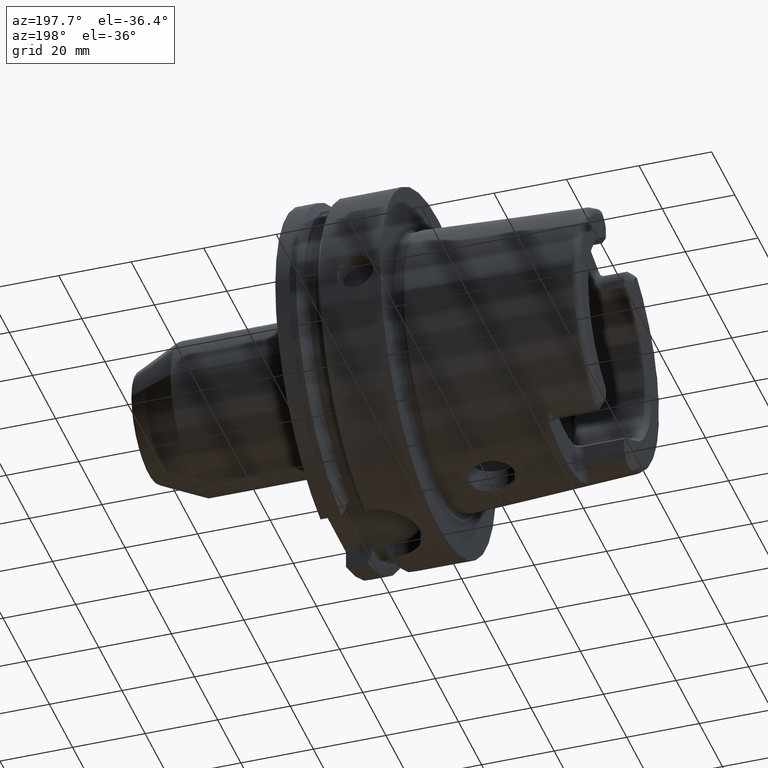
[diagram: clean part render]
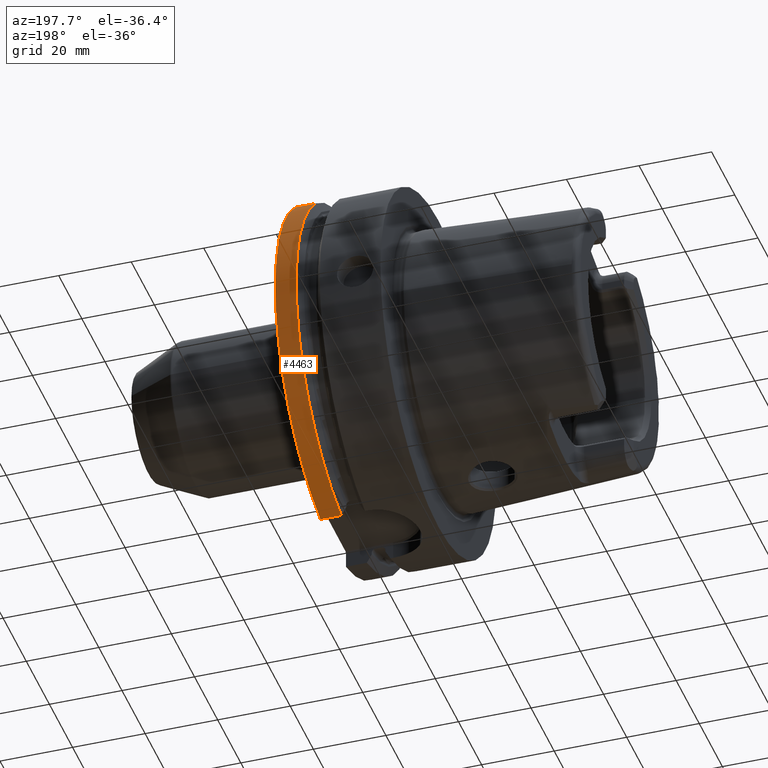
[diagram: same view with one face highlighted and labeled with its STEP entity id]
A machine part, auxiliary view. The second image highlights one B-rep face of the part: STEP entity #4463.
In plain terms, the highlighted cylindrical surface (partial cylindrical patch) has radius 50 mm, axis along (1, 0, 0).
Its self-contained STEP definition (entity closure, byte-faithful):
#1110=DIRECTION('',(1.E0,0.E0,0.E0));
#1111=VECTOR('',#1110,5.752404735808E0);
#1112=CARTESIAN_POINT('',(2.324759526419E1,1.1E1,-4.877499359303E1));
#1113=LINE('',#1112,#1111);
#1114=CARTESIAN_POINT('',(2.9E1,0.E0,0.E0));
#1115=DIRECTION('',(1.E0,0.E0,0.E0));
#1116=DIRECTION('',(0.E0,2.2E-1,-9.754998718606E-1));
#1117=AXIS2_PLACEMENT_3D('',#1114,#1115,#1116);
#1119=DIRECTION('',(1.E0,0.E0,0.E0));
#1120=VECTOR('',#1119,5.752404735808E0);
#1121=CARTESIAN_POINT('',(2.324759526419E1,1.E1,4.898979485566E1));
#1122=LINE('',#1121,#1120);
#1653=CARTESIAN_POINT('',(2.324759526419E1,0.E0,0.E0));
#1654=DIRECTION('',(1.E0,0.E0,0.E0));
#1655=DIRECTION('',(0.E0,2.2E-1,-9.754998718606E-1));
#1656=AXIS2_PLACEMENT_3D('',#1653,#1654,#1655);
#1663=CARTESIAN_POINT('',(2.324759526419E1,1.E1,4.898979485566E1));
#3145=VERTEX_POINT('',#1663);
#3154=CARTESIAN_POINT('',(2.324759526419E1,1.1E1,-4.877499359303E1));
#3155=CARTESIAN_POINT('',(2.9E1,1.1E1,-4.877499359303E1));
#3156=VERTEX_POINT('',#3154);
#3157=VERTEX_POINT('',#3155);
#3200=CARTESIAN_POINT('',(2.9E1,1.E1,4.898979485566E1));
#3201=VERTEX_POINT('',#3200);
#4449=CARTESIAN_POINT('',(-5.395E1,0.E0,0.E0));
#4450=DIRECTION('',(1.E0,0.E0,0.E0));
#4451=DIRECTION('',(0.E0,-1.E0,0.E0));
#4452=AXIS2_PLACEMENT_3D('',#4449,#4450,#4451);
#4453=CYLINDRICAL_SURFACE('',#4452,5.E1);
#4455=ORIENTED_EDGE('',*,*,#4454,.T.);
#4456=ORIENTED_EDGE('',*,*,#4398,.T.);
#4458=ORIENTED_EDGE('',*,*,#4457,.F.);
#4460=ORIENTED_EDGE('',*,*,#4459,.F.);
#4461=EDGE_LOOP('',(#4455,#4456,#4458,#4460));
#4462=FACE_OUTER_BOUND('',#4461,.F.);
#4463=ADVANCED_FACE('',(#4462),#4453,.T.);
#1118=CIRCLE('',#1117,5.E1);
#1657=CIRCLE('',#1656,5.E1);
#4398=EDGE_CURVE('',#3157,#3201,#1118,.T.);
#4454=EDGE_CURVE('',#3156,#3157,#1113,.T.);
#4457=EDGE_CURVE('',#3145,#3201,#1122,.T.);
#4459=EDGE_CURVE('',#3156,#3145,#1657,.T.);